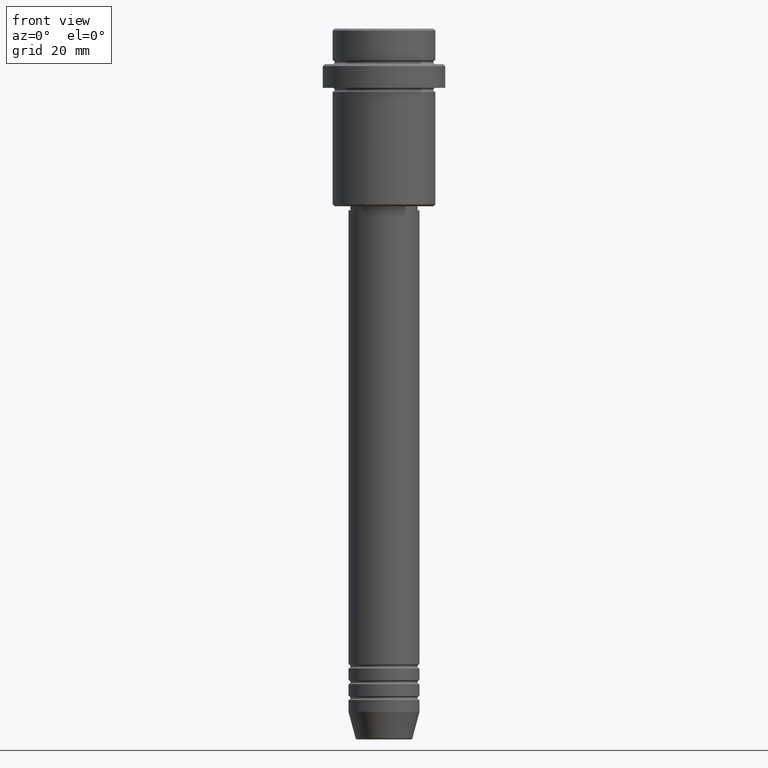
[diagram: clean part render]
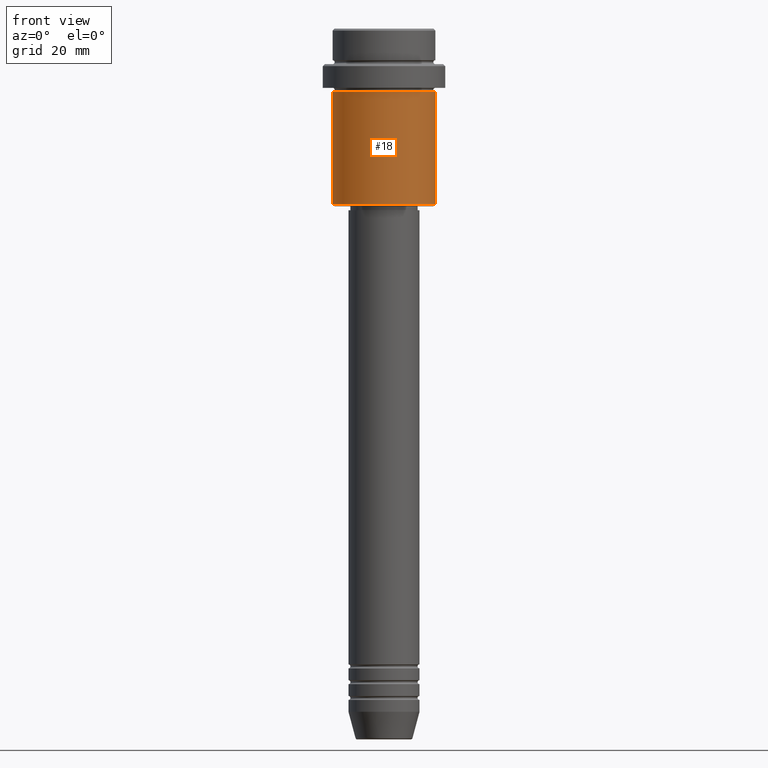
[diagram: same view with one face highlighted and labeled with its STEP entity id]
A machine part, front view. The second image highlights one B-rep face of the part: STEP entity #18.
In plain terms, the highlighted cylindrical surface (partial cylindrical patch) has radius 13 mm, axis along (-0, -0, 1).
Its self-contained STEP definition (entity closure, byte-faithful):
#17 = ORIENTED_EDGE ( 'NONE', *, *, #1008, .F. ) ;
#18 = ADVANCED_FACE ( 'NONE', ( #729 ), #417, .T. ) ;
#75 = CARTESIAN_POINT ( 'NONE',  ( 13.00000000000000000, 0.000000000000000000, -44.50000000000002842 ) ) ;
#102 = AXIS2_PLACEMENT_3D ( 'NONE', #720, #1291, #1391 ) ;
#106 = VECTOR ( 'NONE', #218, 1000.000000000000000 ) ;
#139 = CARTESIAN_POINT ( 'NONE',  ( 13.00000000000000000, 0.000000000000000000, 0.000000000000000000 ) ) ;
#218 = DIRECTION ( 'NONE',  ( -0.000000000000000000, -0.000000000000000000, 1.000000000000000000 ) ) ;
#247 = CARTESIAN_POINT ( 'NONE',  ( -13.00000000000000000, 1.592040838891559095E-15, 0.000000000000000000 ) ) ;
#275 = DIRECTION ( 'NONE',  ( -0.000000000000000000, -0.000000000000000000, 1.000000000000000000 ) ) ;
#417 = CYLINDRICAL_SURFACE ( 'NONE', #1176, 13.00000000000000000 ) ;
#436 = LINE ( 'NONE', #247, #581 ) ;
#475 = CARTESIAN_POINT ( 'NONE',  ( 0.000000000000000000, 0.000000000000000000, -16.00000000000000000 ) ) ;
#487 = ORIENTED_EDGE ( 'NONE', *, *, #652, .F. ) ;
#511 = ORIENTED_EDGE ( 'NONE', *, *, #1299, .T. ) ;
#561 = EDGE_CURVE ( 'NONE', #1194, #587, #1223, .T. ) ;
#581 = VECTOR ( 'NONE', #869, 1000.000000000000000 ) ;
#587 = VERTEX_POINT ( 'NONE', #75 ) ;
#604 = VERTEX_POINT ( 'NONE', #1196 ) ;
#648 = CARTESIAN_POINT ( 'NONE',  ( -13.00000000000000000, 1.592040838891559095E-15, -44.50000000000002842 ) ) ;
#652 = EDGE_CURVE ( 'NONE', #1194, #604, #436, .T. ) ;
#720 = CARTESIAN_POINT ( 'NONE',  ( 0.000000000000000000, 0.000000000000000000, -44.50000000000002842 ) ) ;
#729 = FACE_OUTER_BOUND ( 'NONE', #1366, .T. ) ;
#782 = CIRCLE ( 'NONE', #1382, 13.00000000000000000 ) ;
#825 = DIRECTION ( 'NONE',  ( 1.000000000000000000, 0.000000000000000000, 0.000000000000000000 ) ) ;
#869 = DIRECTION ( 'NONE',  ( -0.000000000000000000, -0.000000000000000000, 1.000000000000000000 ) ) ;
#891 = LINE ( 'NONE', #139, #106 ) ;
#962 = DIRECTION ( 'NONE',  ( -0.000000000000000000, -0.000000000000000000, 1.000000000000000000 ) ) ;
#970 = VERTEX_POINT ( 'NONE', #1039 ) ;
#976 = CARTESIAN_POINT ( 'NONE',  ( 0.000000000000000000, 0.000000000000000000, 0.000000000000000000 ) ) ;
#1008 = EDGE_CURVE ( 'NONE', #604, #970, #782, .T. ) ;
#1039 = CARTESIAN_POINT ( 'NONE',  ( 13.00000000000000000, 0.000000000000000000, -16.00000000000000000 ) ) ;
#1176 = AXIS2_PLACEMENT_3D ( 'NONE', #976, #962, #1301 ) ;
#1194 = VERTEX_POINT ( 'NONE', #648 ) ;
#1196 = CARTESIAN_POINT ( 'NONE',  ( -13.00000000000000000, 1.592040838891559095E-15, -16.00000000000000000 ) ) ;
#1223 = CIRCLE ( 'NONE', #102, 13.00000000000000000 ) ;
#1234 = ORIENTED_EDGE ( 'NONE', *, *, #561, .T. ) ;
#1291 = DIRECTION ( 'NONE',  ( -0.000000000000000000, -0.000000000000000000, 1.000000000000000000 ) ) ;
#1299 = EDGE_CURVE ( 'NONE', #587, #970, #891, .T. ) ;
#1301 = DIRECTION ( 'NONE',  ( 1.000000000000000000, 0.000000000000000000, 0.000000000000000000 ) ) ;
#1366 = EDGE_LOOP ( 'NONE', ( #487, #1234, #511, #17 ) ) ;
#1382 = AXIS2_PLACEMENT_3D ( 'NONE', #475, #275, #825 ) ;
#1391 = DIRECTION ( 'NONE',  ( -1.000000000000000000, 0.000000000000000000, 0.000000000000000000 ) ) ;